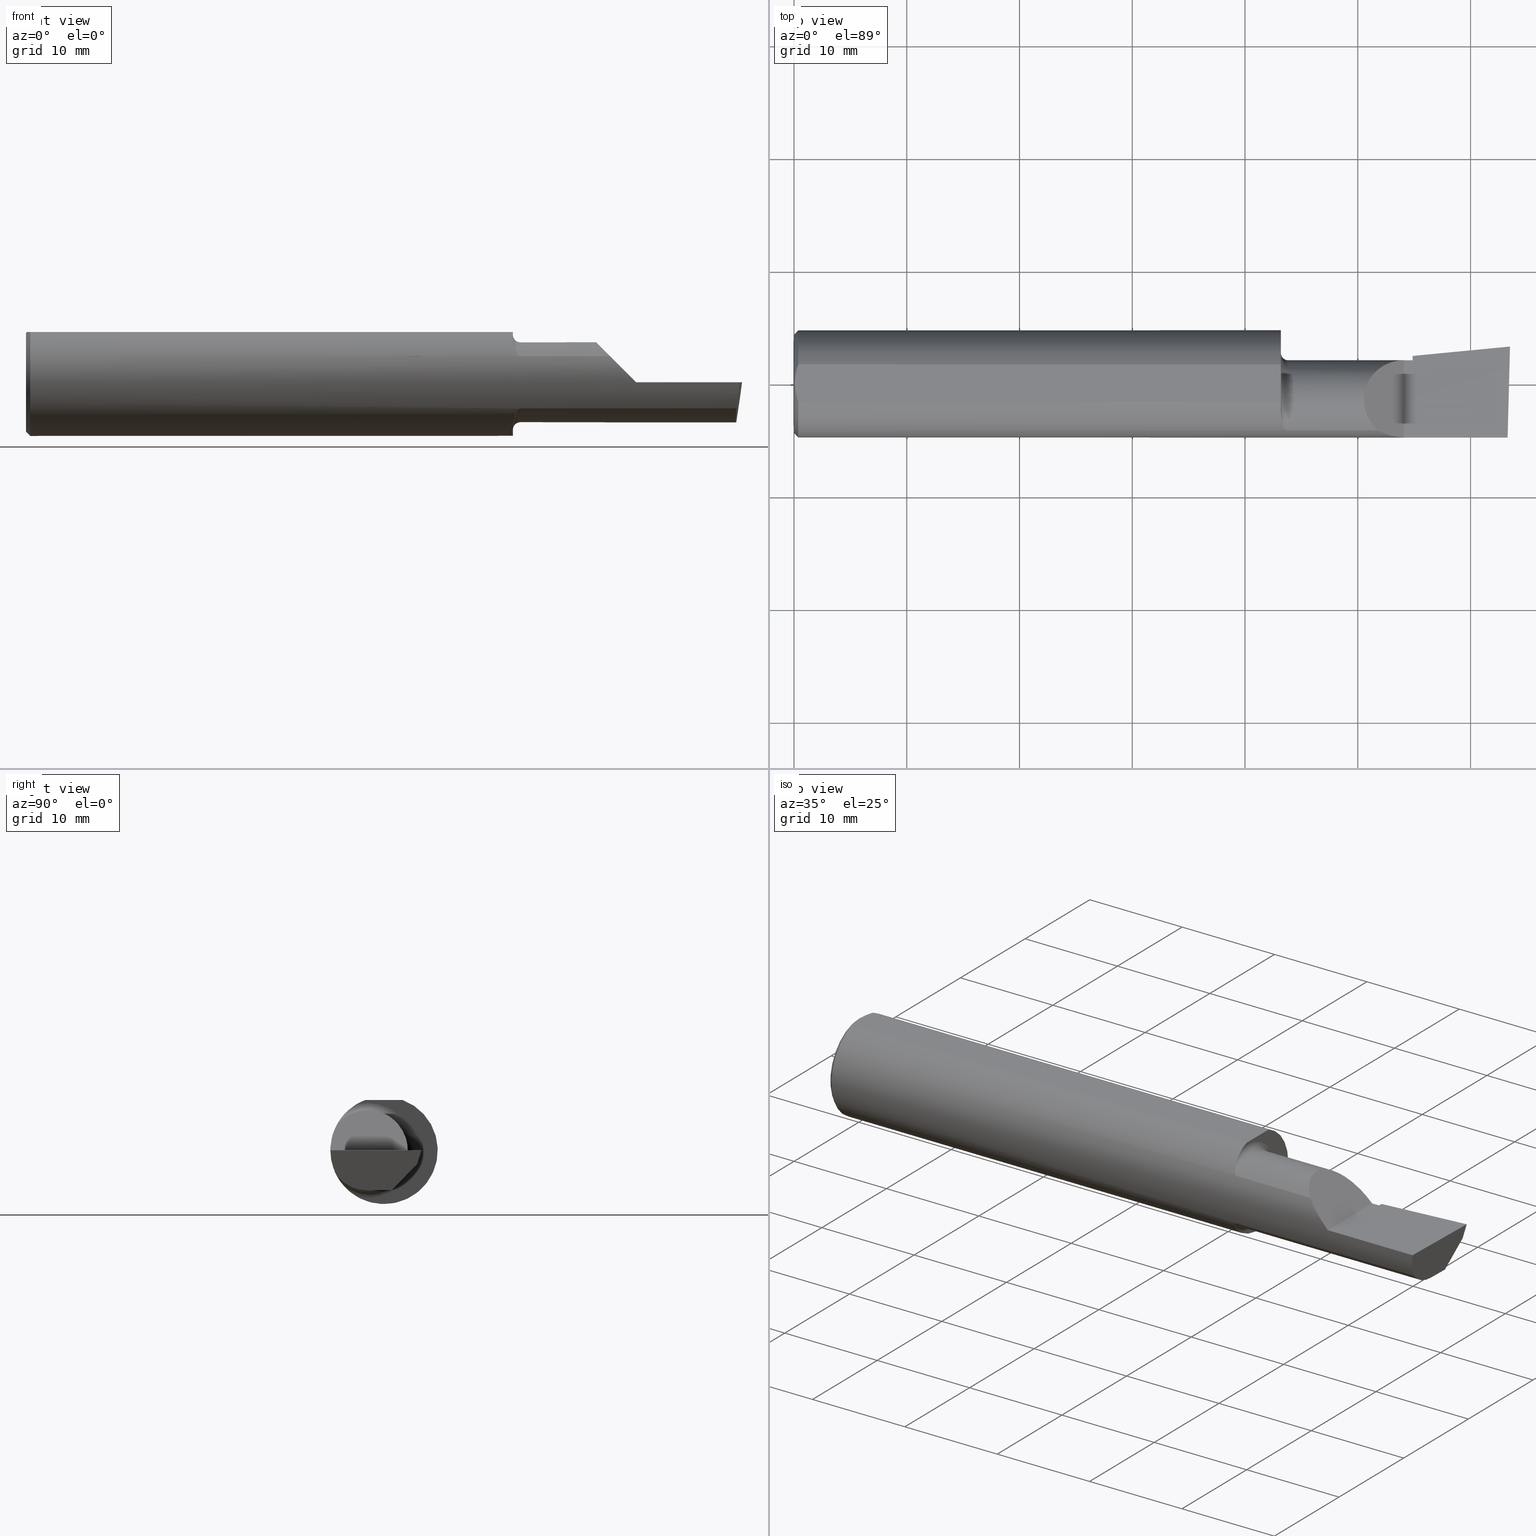
[diagram: canonical four-view strip — front | top / right | iso, engineering-drawing reading convention]
A machine part, canonical four-view strip (front | top / right | iso — engineering-drawing reading convention). The complete STEP part file that produces these views, byte-faithful:
ISO-10303-21;
HEADER;
FILE_DESCRIPTION (( 'STEP AP203' ),
    '1' );
FILE_NAME ('217513-B320750.STEP',
    '2024-04-26T19:31:10',
    ( '' ),
    ( '' ),
    'SwSTEP 2.0',
    'SolidWorks 2022',
    '' );
FILE_SCHEMA (( 'CONFIG_CONTROL_DESIGN' ));
ENDSEC;

DATA;
#1 = ORIENTED_EDGE ( 'NONE', *, *, #519, .F. ) ;
#2 = PLANE ( 'NONE',  #360 ) ;
#3 = CONICAL_SURFACE ( 'NONE', #206, 0.1873499999999999888, 0.7853981633974602694 ) ;
#4 = AXIS2_PLACEMENT_3D ( 'NONE', #473, #232, #470 ) ;
#5 = DIRECTION ( 'NONE',  ( -1.000000000000000000, -0.000000000000000000, -0.000000000000000000 ) ) ;
#6 = CC_DESIGN_APPROVAL ( #11, ( #216 ) ) ;
#7 = CARTESIAN_POINT ( 'NONE',  ( 0.000000000000000000, 0.000000000000000000, 0.000000000000000000 ) ) ;
#8 = EDGE_CURVE ( 'NONE', #627, #538, #231, .T. ) ;
#9 = EDGE_LOOP ( 'NONE', ( #516, #193, #292, #311, #623, #111 ) ) ;
#10 = CARTESIAN_POINT ( 'NONE',  ( 0.004093196532652216939, -0.02240707710020816909, 0.1753499999999999504 ) ) ;
#11 = APPROVAL ( #70, 'UNSPECIFIED' ) ;
#12 = CARTESIAN_POINT ( 'NONE',  ( 1.921229036482944075, -0.06260079402492431389, 0.2087709635170538203 ) ) ;
#13 = CARTESIAN_POINT ( 'NONE',  ( 2.160000000000000142, 0.01441505128072280949, -0.1202356058309981546 ) ) ;
#14 = VECTOR ( 'NONE', #295, 39.37007874015748143 ) ;
#15 = AXIS2_PLACEMENT_3D ( 'NONE', #201, #352, #294 ) ;
#16 = EDGE_CURVE ( 'NONE', #487, #195, #415, .T. ) ;
#17 = CARTESIAN_POINT ( 'NONE',  ( 2.129999999999999893, -0.2500000000000000555, 1.065442715258197396E-16 ) ) ;
#18 =( NAMED_UNIT ( * ) PLANE_ANGLE_UNIT ( ) SI_UNIT ( $, .RADIAN. ) );
#19 = CARTESIAN_POINT ( 'NONE',  ( 2.477873865042410806, -0.05739999999999999963, -0.1400500000000000633 ) ) ;
#20 = PERSON_AND_ORGANIZATION ( #509, #169 ) ;
#21 = LINE ( 'NONE', #313, #151 ) ;
#22 = VECTOR ( 'NONE', #102, 39.37007874015748143 ) ;
#23 = EDGE_CURVE ( 'NONE', #487, #331, #307, .T. ) ;
#24 = LINE ( 'NONE', #605, #34 ) ;
#25 = EDGE_LOOP ( 'NONE', ( #620, #464, #435, #543, #259 ) ) ;
#26 = CARTESIAN_POINT ( 'NONE',  ( 2.481080296960508580, -0.1635956445993030084, -0.09130436773856176469 ) ) ;
#27 =( BOUNDED_CURVE ( )  B_SPLINE_CURVE ( 3, ( #236, #46, #381, #570 ),
 .UNSPECIFIED., .F., .T. ) 
 B_SPLINE_CURVE_WITH_KNOTS ( ( 4, 4 ),
 ( 5.632580117768155148, 6.493234751459282528 ),
 .UNSPECIFIED. ) 
 CURVE ( )  GEOMETRIC_REPRESENTATION_ITEM ( )  RATIONAL_B_SPLINE_CURVE ( ( 1.000000000000000000, 0.9392195014330944058, 0.9392195014330944058, 1.000000000000000000 ) ) 
 REPRESENTATION_ITEM ( '' )  );
#28 = CC_DESIGN_PERSON_AND_ORGANIZATION_ASSIGNMENT ( #549, #462, ( #568 ) ) ;
#29 = ORIENTED_EDGE ( 'NONE', *, *, #103, .T. ) ;
#30 = CARTESIAN_POINT ( 'NONE',  ( 1.712204638458737049, -0.1550630761760521670, 0.1052254855377565551 ) ) ;
#31 = CARTESIAN_POINT ( 'NONE',  ( 0.5470260790800316464, -0.05740000000000000657, 2.701812985571356346E-16 ) ) ;
#32 = ORIENTED_EDGE ( 'NONE', *, *, #221, .F. ) ;
#33 = DIRECTION ( 'NONE',  ( -1.000000000000000000, -6.829619984160658046E-18, 0.000000000000000000 ) ) ;
#34 = VECTOR ( 'NONE', #367, 39.37007874015748143 ) ;
#35 = ORIENTED_EDGE ( 'NONE', *, *, #610, .F. ) ;
#36 = COORDINATED_UNIVERSAL_TIME_OFFSET ( 8, 0, .BEHIND. ) ;
#37 = PLANE ( 'NONE',  #278 ) ;
#38 = ORIENTED_EDGE ( 'NONE', *, *, #274, .T. ) ;
#39 = FACE_OUTER_BOUND ( 'NONE', #269, .T. ) ;
#40 = VERTEX_POINT ( 'NONE', #47 ) ;
#41 = LINE ( 'NONE', #134, #189 ) ;
#42 = EDGE_CURVE ( 'NONE', #275, #376, #399, .T. ) ;
#43 = VECTOR ( 'NONE', #286, 39.37007874015748143 ) ;
#44 = VERTEX_POINT ( 'NONE', #237 ) ;
#45 = PRODUCT_DEFINITION_FORMATION_WITH_SPECIFIED_SOURCE ( 'ANY', '', #600, .NOT_KNOWN. ) ;
#46 = CARTESIAN_POINT ( 'NONE',  ( 2.477925907309857401, -0.1365595166907235813, -0.1227499502647108609 ) ) ;
#47 = CARTESIAN_POINT ( 'NONE',  ( 2.160000000000000142, 0.09791172361284168624, 3.286754617377316716E-16 ) ) ;
#48 = ORIENTED_EDGE ( 'NONE', *, *, #71, .T. ) ;
#49 = CARTESIAN_POINT ( 'NONE',  ( 1.701903396790307221, -0.1248165254919059997, -0.1399798634953948184 ) ) ;
#50 = CARTESIAN_POINT ( 'NONE',  ( 0.003000000000000218638, 2.334609556160449697E-17, 0.1753499999999999781 ) ) ;
#51 = EDGE_CURVE ( 'NONE', #80, #325, #625, .T. ) ;
#52 = CARTESIAN_POINT ( 'NONE',  ( 2.129999999999999893, 0.08264999999999990410, 1.065442715258197396E-16 ) ) ;
#53 = DIRECTION ( 'NONE',  ( -6.829619984160658046E-18, 1.000000000000000000, 0.000000000000000000 ) ) ;
#54 = ORIENTED_EDGE ( 'NONE', *, *, #530, .F. ) ;
#55 = LOCAL_TIME ( 12, 31, 10.00000000000000000, #592 ) ;
#56 = CARTESIAN_POINT ( 'NONE',  ( 0.01125230581755086272, 0.05532998191409922023, 0.1753500000000000059 ) ) ;
#57 = ADVANCED_FACE ( 'NONE', ( #390 ), #3, .T. ) ;
#58 = CARTESIAN_POINT ( 'NONE',  ( 2.500000000000000000, -0.2500000000000000555, 6.829619984160658046E-17 ) ) ;
#59 = CARTESIAN_POINT ( 'NONE',  ( 1.700000000000000178, -0.1045082199249679489, -0.1557306416133595883 ) ) ;
#60 = DIRECTION ( 'NONE',  ( 0.000000000000000000, -1.438723400918613551E-16, -1.000000000000000000 ) ) ;
#61 = ORIENTED_EDGE ( 'NONE', *, *, #324, .T. ) ;
#62 = LINE ( 'NONE', #242, #99 ) ;
#63 = PLANE ( 'NONE',  #471 ) ;
#64 = DATE_AND_TIME ( #304, #141 ) ;
#65 = VECTOR ( 'NONE', #446, 39.37007874015748143 ) ;
#66 = CC_DESIGN_APPROVAL ( #619, ( #568 ) ) ;
#67 = SECURITY_CLASSIFICATION_LEVEL ( 'unclassified' ) ;
#68 = CARTESIAN_POINT ( 'NONE',  ( 1.716855994529494334, -0.1603175578889966812, 0.09696363432848482955 ) ) ;
#69 = VERTEX_POINT ( 'NONE', #534 ) ;
#70 = APPROVAL_STATUS ( 'not_yet_approved' ) ;
#71 = EDGE_CURVE ( 'NONE', #494, #538, #97, .T. ) ;
#72 = CARTESIAN_POINT ( 'NONE',  ( 0.000000000000000000, 0.000000000000000000, -0.1723499999999996424 ) ) ;
#73 = CARTESIAN_POINT ( 'NONE',  ( 0.01499999999999999424, 0.06597272163553663527, 0.1753499999999999781 ) ) ;
#74 = ORIENTED_EDGE ( 'NONE', *, *, #606, .T. ) ;
#75 = MECHANICAL_CONTEXT ( 'NONE', #533, 'mechanical' ) ;
#76 = CARTESIAN_POINT ( 'NONE',  ( 2.511419111345318811, 0.1163922996227946677, -0.04999999999999999584 ) ) ;
#77 = VECTOR ( 'NONE', #615, 39.37007874015748143 ) ;
#78 = VECTOR ( 'NONE', #5, 39.37007874015748143 ) ;
#79 = CARTESIAN_POINT ( 'NONE',  ( 2.481080296960508580, -0.1635956445993030084, -0.09130436773856176469 ) ) ;
#80 = VERTEX_POINT ( 'NONE', #73 ) ;
#81 = SHAPE_DEFINITION_REPRESENTATION ( #377, #375 ) ;
#82 = DIRECTION ( 'NONE',  ( 6.829619984160658816E-18, -1.000000000000000000, 0.000000000000000000 ) ) ;
#83 = DIRECTION ( 'NONE',  ( 6.829619984160658046E-18, -1.000000000000000000, 0.000000000000000000 ) ) ;
#84 = VERTEX_POINT ( 'NONE', #173 ) ;
#85 = FACE_OUTER_BOUND ( 'NONE', #413, .T. ) ;
#86 = ORIENTED_EDGE ( 'NONE', *, *, #476, .F. ) ;
#87 = LINE ( 'NONE', #227, #602 ) ;
#88 = AXIS2_PLACEMENT_3D ( 'NONE', #7, #485, #350 ) ;
#89 = AXIS2_PLACEMENT_3D ( 'NONE', #253, #559, #125 ) ;
#90 = ORIENTED_EDGE ( 'NONE', *, *, #274, .F. ) ;
#91 = CARTESIAN_POINT ( 'NONE',  ( 2.160000000000000142, -0.05739999999999999963, -0.1400500000000000633 ) ) ;
#92 = ORIENTED_EDGE ( 'NONE', *, *, #596, .F. ) ;
#93 = EDGE_CURVE ( 'NONE', #448, #420, #514, .T. ) ;
#94 = CARTESIAN_POINT ( 'NONE',  ( 2.487725449370724817, -0.1873500000000000443, -0.03213820089768506388 ) ) ;
#95 = CARTESIAN_POINT ( 'NONE',  ( 1.724999999999999867, -0.05740000000000000657, 0.000000000000000000 ) ) ;
#96 = ADVANCED_FACE ( 'NONE', ( #578 ), #147, .T. ) ;
#97 = LINE ( 'NONE', #520, #180 ) ;
#98 = AXIS2_PLACEMENT_3D ( 'NONE', #108, #496, #199 ) ;
#99 = VECTOR ( 'NONE', #584, 39.37007874015748143 ) ;
#100 = VERTEX_POINT ( 'NONE', #336 ) ;
#101 = CARTESIAN_POINT ( 'NONE',  ( 2.129999999999999893, -0.2500000000000000555, 1.065442715258197396E-16 ) ) ;
#102 = DIRECTION ( 'NONE',  ( 0.7071067811865390240, 0.000000000000000000, -0.7071067811865560104 ) ) ;
#103 = EDGE_CURVE ( 'NONE', #40, #474, #271, .T. ) ;
#104 = VERTEX_POINT ( 'NONE', #459 ) ;
#105 = DIRECTION ( 'NONE',  ( -1.000000000000000000, 0.000000000000000000, 1.033731667140896077E-16 ) ) ;
#106 = EDGE_LOOP ( 'NONE', ( #86, #368, #388, #228, #432, #74, #226, #35, #155, #256 ) ) ;
#107 = LINE ( 'NONE', #393, #234 ) ;
#108 = CARTESIAN_POINT ( 'NONE',  ( 2.160000000000000142, 0.09791172361283667636, 0.000000000000000000 ) ) ;
#109 = ORIENTED_EDGE ( 'NONE', *, *, #428, .T. ) ;
#110 = CARTESIAN_POINT ( 'NONE',  ( 2.500000000000000000, 0.2373500000000000332, 0.1753499999999999504 ) ) ;
#111 = ORIENTED_EDGE ( 'NONE', *, *, #288, .F. ) ;
#112 = CARTESIAN_POINT ( 'NONE',  ( 0.003000000000000169632, 0.01127363201155560934, 0.1753499999999999781 ) ) ;
#113 = EDGE_CURVE ( 'NONE', #40, #44, #24, .T. ) ;
#114 = APPROVAL_STATUS ( 'not_yet_approved' ) ;
#115 = DIRECTION ( 'NONE',  ( -0.9953961983671800740, -0.09584575252021031166, 0.000000000000000000 ) ) ;
#116 = EDGE_CURVE ( 'NONE', #284, #494, #291, .T. ) ;
#117 = PERSON_AND_ORGANIZATION_ROLE ( 'creator' ) ;
#118 = VECTOR ( 'NONE', #394, 39.37007874015748143 ) ;
#119 = CIRCLE ( 'NONE', #308, 0.1873499999999999888 ) ;
#120 = CARTESIAN_POINT ( 'NONE',  ( 2.509953961983673043, 0.1316084575252021716, -6.829619984160658046E-17 ) ) ;
#121 = DATE_TIME_ROLE ( 'classification_date' ) ;
#122 = DIRECTION ( 'NONE',  ( 0.000000000000000000, -1.000000000000000000, 0.000000000000000000 ) ) ;
#123 = CC_DESIGN_DATE_AND_TIME_ASSIGNMENT ( #408, #121, ( #216 ) ) ;
#124 = B_SPLINE_CURVE_WITH_KNOTS ( 'NONE', 3,
 ( #582, #440, #302, #10, #547, #541 ),
 .UNSPECIFIED., .F., .F.,
 ( 4, 2, 4 ),
 ( 0.001779942938356815062, 0.002629978419973711019, 0.003480013901590607410 ),
 .UNSPECIFIED. ) ;
#125 = DIRECTION ( 'NONE',  ( 1.000000000000000000, 0.000000000000000000, 0.000000000000000000 ) ) ;
#126 = DIRECTION ( 'NONE',  ( 0.000000000000000000, 1.000000000000000000, 0.000000000000000000 ) ) ;
#127 = DIRECTION ( 'NONE',  ( 0.000000000000000000, 0.000000000000000000, 1.000000000000000000 ) ) ;
#128 = ORIENTED_EDGE ( 'NONE', *, *, #8, .T. ) ;
#129 = DATE_AND_TIME ( #354, #55 ) ;
#130 = PLANE ( 'NONE',  #383 ) ;
#131 = APPLICATION_CONTEXT ( 'configuration controlled 3d designs of mechanical parts and assemblies' ) ;
#132 = ORIENTED_EDGE ( 'NONE', *, *, #142, .F. ) ;
#133 = CALENDAR_DATE ( 2024, 26, 4 ) ;
#134 = CARTESIAN_POINT ( 'NONE',  ( 2.160000000000000142, 0.06382066673065307782, -0.06931012851386068874 ) ) ;
#135 = ORIENTED_EDGE ( 'NONE', *, *, #356, .F. ) ;
#136 = APPROVAL_DATE_TIME ( #322, #11 ) ;
#137 = CARTESIAN_POINT ( 'NONE',  ( 0.000000000000000000, 2.202527268266512578E-17, 0.1723499999999996424 ) ) ;
#138 = ORIENTED_EDGE ( 'NONE', *, *, #626, .T. ) ;
#139 = CARTESIAN_POINT ( 'NONE',  ( 0.01499999999999999424, 0.000000000000000000, 0.000000000000000000 ) ) ;
#140 = VECTOR ( 'NONE', #369, 39.37007874015748143 ) ;
#141 = LOCAL_TIME ( 12, 31, 10.00000000000000000, #208 ) ;
#142 = EDGE_CURVE ( 'NONE', #331, #84, #300, .T. ) ;
#143 = ORIENTED_EDGE ( 'NONE', *, *, #387, .F. ) ;
#144 = CARTESIAN_POINT ( 'NONE',  ( 1.699999999999999956, -0.06597272163553659363, 0.1753499999999999781 ) ) ;
#145 = ORIENTED_EDGE ( 'NONE', *, *, #93, .T. ) ;
#146 = DIRECTION ( 'NONE',  ( -0.9922060308645608284, 0.02598182930461468559, 0.1218693434050591162 ) ) ;
#147 = PLANE ( 'NONE',  #339 ) ;
#148 = CARTESIAN_POINT ( 'NONE',  ( 1.699999999999999956, -0.09715400696864101571, -0.1601908905959925355 ) ) ;
#149 = DIRECTION ( 'NONE',  ( 0.000000000000000000, 1.000000000000000000, 8.537024980200821325E-17 ) ) ;
#150 = ADVANCED_FACE ( 'NONE', ( #499 ), #489, .F. ) ;
#151 = VECTOR ( 'NONE', #210, 39.37007874015748143 ) ;
#152 = ORIENTED_EDGE ( 'NONE', *, *, #314, .F. ) ;
#153 = CC_DESIGN_SECURITY_CLASSIFICATION ( #216, ( #45 ) ) ;
#154 = DIRECTION ( 'NONE',  ( 1.000000000000000000, 0.000000000000000000, 0.000000000000000000 ) ) ;
#155 = ORIENTED_EDGE ( 'NONE', *, *, #356, .T. ) ;
#156 = CARTESIAN_POINT ( 'NONE',  ( 0.003000000000000218638, 2.334609556160449697E-17, 0.1753499999999999781 ) ) ;
#157 = DIRECTION ( 'NONE',  ( 0.000000000000000000, 1.000000000000000000, -1.438723400918613551E-16 ) ) ;
#158 = ORIENTED_EDGE ( 'NONE', *, *, #387, .T. ) ;
#159 = VECTOR ( 'NONE', #247, 39.37007874015748143 ) ;
#160 = ADVANCED_FACE ( 'NONE', ( #493 ), #63, .F. ) ;
#161 = DIRECTION ( 'NONE',  ( 1.000000000000000000, 6.829619984160658046E-18, 0.000000000000000000 ) ) ;
#162 = CARTESIAN_POINT ( 'NONE',  ( 2.493766568580444432, 0.1168246249203733628, -0.04780233936830585728 ) ) ;
#163 = PERSON_AND_ORGANIZATION ( #509, #169 ) ;
#164 = CARTESIAN_POINT ( 'NONE',  ( 0.01499999999999997863, -0.06597272163553657975, 0.1753499999999999781 ) ) ;
#165 =( NAMED_UNIT ( * ) SI_UNIT ( $, .STERADIAN. ) SOLID_ANGLE_UNIT ( ) );
#166 = DIRECTION ( 'NONE',  ( -1.000000000000000000, -6.829619984160658046E-18, -0.000000000000000000 ) ) ;
#167 = EDGE_CURVE ( 'NONE', #100, #40, #537, .T. ) ;
#168 = PERSON_AND_ORGANIZATION ( #509, #169 ) ;
#169 = ORGANIZATION ( 'UNSPECIFIED', 'UNSPECIFIED', '' ) ;
#170 = CARTESIAN_POINT ( 'NONE',  ( 2.160000000000000142, -0.05739999999999999963, 0.000000000000000000 ) ) ;
#171 = PRODUCT_RELATED_PRODUCT_CATEGORY ( 'detail', '', ( #600 ) ) ;
#172 = CARTESIAN_POINT ( 'NONE',  ( 2.129999999999999893, 0.08264999999999990410, 1.065442715258197396E-16 ) ) ;
#173 = CARTESIAN_POINT ( 'NONE',  ( 0.01499999999999999424, 0.000000000000000000, -0.1873499999999999888 ) ) ;
#174 = ORIENTED_EDGE ( 'NONE', *, *, #167, .T. ) ;
#175 = DIRECTION ( 'NONE',  ( -1.000000000000000000, -6.829619984160658046E-18, -0.000000000000000000 ) ) ;
#176 =( BOUNDED_CURVE ( )  B_SPLINE_CURVE ( 3, ( #305, #567, #427, #183 ),
 .UNSPECIFIED., .F., .T. ) 
 B_SPLINE_CURVE_WITH_KNOTS ( ( 4, 4 ),
 ( 4.712388980384689674, 5.221437360734125122 ),
 .UNSPECIFIED. ) 
 CURVE ( )  GEOMETRIC_REPRESENTATION_ITEM ( )  RATIONAL_B_SPLINE_CURVE ( ( 1.000000000000000000, 0.9785221379938656705, 0.9785221379938656705, 1.000000000000000000 ) ) 
 REPRESENTATION_ITEM ( '' )  );
#177 = DIRECTION ( 'NONE',  ( -0.9953961983671800740, -0.09584575252021028391, -1.093478026937437971E-17 ) ) ;
#178 = ORIENTED_EDGE ( 'NONE', *, *, #23, .F. ) ;
#179 = EDGE_CURVE ( 'NONE', #331, #487, #613, .T. ) ;
#180 = VECTOR ( 'NONE', #149, 39.37007874015748143 ) ;
#181 = DIRECTION ( 'NONE',  ( -1.000000000000000000, -6.829619984160658046E-18, -0.000000000000000000 ) ) ;
#182 = ORIENTED_EDGE ( 'NONE', *, *, #186, .F. ) ;
#183 = CARTESIAN_POINT ( 'NONE',  ( 2.038695632261437130, -0.1635956445993029529, 0.09130436773856191734 ) ) ;
#184 = ORIENTED_EDGE ( 'NONE', *, *, #530, .T. ) ;
#185 = DIRECTION ( 'NONE',  ( -0.06894566448119619773, 0.7160281025913034503, -0.6946583704589934793 ) ) ;
#186 = EDGE_CURVE ( 'NONE', #80, #84, #233, .T. ) ;
#187 = VERTEX_POINT ( 'NONE', #13 ) ;
#188 = CARTESIAN_POINT ( 'NONE',  ( 1.724999999999999867, -0.1635956445993029251, -0.09130436773856190347 ) ) ;
#189 = VECTOR ( 'NONE', #379, 39.37007874015748143 ) ;
#190 = APPROVAL_PERSON_ORGANIZATION ( #168, #11, #214 ) ;
#191 = CARTESIAN_POINT ( 'NONE',  ( 2.491859106488688358, 0.02714641170210404381, -0.1400500000000000633 ) ) ;
#192 = FACE_OUTER_BOUND ( 'NONE', #614, .T. ) ;
#193 = ORIENTED_EDGE ( 'NONE', *, *, #364, .T. ) ;
#194 = DIRECTION ( 'NONE',  ( -1.000000000000000000, -0.000000000000000000, -0.000000000000000000 ) ) ;
#195 = VERTEX_POINT ( 'NONE', #50 ) ;
#196 = CARTESIAN_POINT ( 'NONE',  ( 3.377502344341257155E-32, -0.1873499999999999610, 3.267291166268304703E-16 ) ) ;
#197 = FACE_OUTER_BOUND ( 'NONE', #9, .T. ) ;
#198 = AXIS2_PLACEMENT_3D ( 'NONE', #402, #250, #442 ) ;
#199 = DIRECTION ( 'NONE',  ( 6.829619984160658046E-18, -1.000000000000000000, 0.000000000000000000 ) ) ;
#200 = EDGE_LOOP ( 'NONE', ( #135, #571, #372 ) ) ;
#201 = CARTESIAN_POINT ( 'NONE',  ( 2.160000000000000142, -0.05739999999999999963, 0.000000000000000000 ) ) ;
#202 = LINE ( 'NONE', #162, #287 ) ;
#203 = ADVANCED_FACE ( 'NONE', ( #445 ), #540, .F. ) ;
#204 = DIRECTION ( 'NONE',  ( -0.7071067811865511255, 0.000000000000000000, 0.7071067811865437980 ) ) ;
#205 = DIRECTION ( 'NONE',  ( 0.1053106618240634978, 0.6976485211320199165, 0.7086580314005359593 ) ) ;
#206 = AXIS2_PLACEMENT_3D ( 'NONE', #392, #268, #580 ) ;
#207 = CIRCLE ( 'NONE', #581, 0.1650500000000000300 ) ;
#208 = COORDINATED_UNIVERSAL_TIME_OFFSET ( 8, 0, .BEHIND. ) ;
#209 = EDGE_CURVE ( 'NONE', #325, #448, #542, .T. ) ;
#210 = DIRECTION ( 'NONE',  ( 0.1240019227988267692, 0.3022330132596589558, 0.9451342385281472636 ) ) ;
#211 = B_SPLINE_CURVE_WITH_KNOTS ( 'NONE', 3,
 ( #591, #353, #548, #409, #363, #599, #609, #30, #310, #68, #355, #315, #366, #258 ),
 .UNSPECIFIED., .F., .F.,
 ( 4, 2, 2, 2, 2, 2, 4 ),
 ( 0.0002471551878304205298, 0.0008987327522055599521, 0.001550310316580699212, 0.002201887880955839122, 0.002527676663143408210, 0.002690571054237193404, 0.002853465445330977731 ),
 .UNSPECIFIED. ) ;
#212 = FACE_OUTER_BOUND ( 'NONE', #477, .T. ) ;
#213 = ADVANCED_FACE ( 'NONE', ( #197 ), #583, .F. ) ;
#214 = APPROVAL_ROLE ( '' ) ;
#215 = AXIS2_PLACEMENT_3D ( 'NONE', #58, #449, #105 ) ;
#216 = SECURITY_CLASSIFICATION ( '', '', #67 ) ;
#217 = CARTESIAN_POINT ( 'NONE',  ( 2.491672876940991710, -0.1873499999999999888, 6.915950918908297591E-17 ) ) ;
#218 = CARTESIAN_POINT ( 'NONE',  ( 2.484117089522337452, -0.1792580844883771007, -0.06324101202936138755 ) ) ;
#219 = EDGE_LOOP ( 'NONE', ( #527, #298 ) ) ;
#220 = LINE ( 'NONE', #17, #441 ) ;
#221 = EDGE_CURVE ( 'NONE', #187, #538, #240, .T. ) ;
#222 = EDGE_LOOP ( 'NONE', ( #469, #511, #321, #48 ) ) ;
#223 = ORIENTED_EDGE ( 'NONE', *, *, #324, .F. ) ;
#224 = AXIS2_PLACEMENT_3D ( 'NONE', #453, #560, #261 ) ;
#225 = CARTESIAN_POINT ( 'NONE',  ( 2.511419111345318811, 0.1163922996227946677, -0.04999999999999999584 ) ) ;
#226 = ORIENTED_EDGE ( 'NONE', *, *, #293, .T. ) ;
#227 = CARTESIAN_POINT ( 'NONE',  ( 1.942499999999999893, -0.1635956445993030084, -0.09130436773856176469 ) ) ;
#228 = ORIENTED_EDGE ( 'NONE', *, *, #596, .T. ) ;
#229 = CARTESIAN_POINT ( 'NONE',  ( 1.724999999999999867, -0.1635956445993029251, -0.09130436773856190347 ) ) ;
#230 = CC_DESIGN_PERSON_AND_ORGANIZATION_ASSIGNMENT ( #552, #452, ( #600 ) ) ;
#231 = LINE ( 'NONE', #191, #503 ) ;
#232 = DIRECTION ( 'NONE',  ( -1.000000000000000000, -0.000000000000000000, -0.000000000000000000 ) ) ;
#233 = CIRCLE ( 'NONE', #198, 0.1873499999999999888 ) ;
#234 = VECTOR ( 'NONE', #161, 39.37007874015748143 ) ;
#235 = EDGE_LOOP ( 'NONE', ( #361, #484 ) ) ;
#236 = CARTESIAN_POINT ( 'NONE',  ( 2.481080296960508580, -0.1635956445993030084, -0.09130436773856176469 ) ) ;
#237 = CARTESIAN_POINT ( 'NONE',  ( 2.160000000000000142, 0.08255448787293394319, -0.04999999999999999584 ) ) ;
#238 = ADVANCED_FACE ( 'NONE', ( #248 ), #347, .T. ) ;
#239 = CARTESIAN_POINT ( 'NONE',  ( 1.975085956200449022, 0.08265000000000000124, 0.1549140437995494002 ) ) ;
#240 = LINE ( 'NONE', #593, #118 ) ;
#241 = DIMENSIONAL_EXPONENTS ( 1.000000000000000000, 0.000000000000000000, 0.000000000000000000, 0.000000000000000000, 0.000000000000000000, 0.000000000000000000, 0.000000000000000000 ) ;
#242 = CARTESIAN_POINT ( 'NONE',  ( 1.942499999999999893, -0.1635956445993030084, 0.09130436773856176469 ) ) ;
#243 = CARTESIAN_POINT ( 'NONE',  ( 1.699999999999999956, 0.2373500000000000332, 0.1753499999999999504 ) ) ;
#244 = TOROIDAL_SURFACE ( 'NONE', #328, 0.1650500000000000023, 0.02499999999999992853 ) ;
#245 = ORIENTED_EDGE ( 'NONE', *, *, #544, .F. ) ;
#246 = DIRECTION ( 'NONE',  ( -1.000000000000000000, -6.829619984160658046E-18, -0.000000000000000000 ) ) ;
#247 = DIRECTION ( 'NONE',  ( 6.829619984160658046E-18, -1.000000000000000000, 1.438723400918613551E-16 ) ) ;
#248 = FACE_OUTER_BOUND ( 'NONE', #337, .T. ) ;
#249 = ORIENTED_EDGE ( 'NONE', *, *, #626, .F. ) ;
#250 = DIRECTION ( 'NONE',  ( -1.000000000000000000, -0.000000000000000000, -0.000000000000000000 ) ) ;
#251 = VECTOR ( 'NONE', #115, 39.37007874015748854 ) ;
#252 = CIRCLE ( 'NONE', #15, 0.1400500000000000356 ) ;
#253 = CARTESIAN_POINT ( 'NONE',  ( 0.000000000000000000, 0.000000000000000000, 0.000000000000000000 ) ) ;
#254 = CYLINDRICAL_SURFACE ( 'NONE', #492, 0.1400500000000000078 ) ;
#255 = APPROVAL ( #114, 'UNSPECIFIED' ) ;
#256 = ORIENTED_EDGE ( 'NONE', *, *, #116, .F. ) ;
#257 = PERSON_AND_ORGANIZATION ( #509, #169 ) ;
#258 = CARTESIAN_POINT ( 'NONE',  ( 1.724999999999999867, -0.1635956445993027586, 0.09130436773856215327 ) ) ;
#259 = ORIENTED_EDGE ( 'NONE', *, *, #573, .T. ) ;
#260 = COORDINATED_UNIVERSAL_TIME_OFFSET ( 8, 0, .BEHIND. ) ;
#261 = DIRECTION ( 'NONE',  ( 0.000000000000000000, -1.000000000000000000, 0.000000000000000000 ) ) ;
#262 = B_SPLINE_CURVE_WITH_KNOTS ( 'NONE', 3,
 ( #229, #332, #531, #283, #478, #430, #624, #532, #579, #495, #49, #488, #59, #148 ),
 .UNSPECIFIED., .F., .F.,
 ( 4, 2, 2, 2, 2, 2, 4 ),
 ( 1.968340875534775581E-07, 0.0001667114270246284366, 0.0003332260199617034032, 0.0006662552058358533905, 0.001332313577584147510, 0.001998371949332441305, 0.002664430321080735534 ),
 .UNSPECIFIED. ) ;
#263 = DIRECTION ( 'NONE',  ( -1.000000000000000000, -6.829619984160658046E-18, 0.000000000000000000 ) ) ;
#264 = APPLICATION_PROTOCOL_DEFINITION ( 'international standard', 'config_control_design', 1994, #131 ) ;
#265 = AXIS2_PLACEMENT_3D ( 'NONE', #95, #181, #323 ) ;
#266 = LINE ( 'NONE', #407, #140 ) ;
#267 = EDGE_CURVE ( 'NONE', #627, #348, #202, .T. ) ;
#268 = DIRECTION ( 'NONE',  ( 1.000000000000000000, 0.000000000000000000, 0.000000000000000000 ) ) ;
#269 = EDGE_LOOP ( 'NONE', ( #576, #490, #279, #597, #521, #574 ) ) ;
#270 = DIRECTION ( 'NONE',  ( 0.02617694830779364323, 0.9996573249755593693, -2.665804247635780349E-18 ) ) ;
#271 = LINE ( 'NONE', #31, #554 ) ;
#272 = ORIENTED_EDGE ( 'NONE', *, *, #51, .F. ) ;
#273 = CARTESIAN_POINT ( 'NONE',  ( 2.160000000000000142, 0.09791172361283667636, 0.000000000000000000 ) ) ;
#274 = EDGE_CURVE ( 'NONE', #400, #316, #211, .T. ) ;
#275 = VERTEX_POINT ( 'NONE', #26 ) ;
#276 = AXIS2_PLACEMENT_3D ( 'NONE', #110, #60, #157 ) ;
#277 = PLANE ( 'NONE',  #351 ) ;
#278 = AXIS2_PLACEMENT_3D ( 'NONE', #575, #146, #326 ) ;
#279 = ORIENTED_EDGE ( 'NONE', *, *, #267, .T. ) ;
#280 = CC_DESIGN_PERSON_AND_ORGANIZATION_ASSIGNMENT ( #257, #454, ( #216 ) ) ;
#281 = PLANE ( 'NONE',  #385 ) ;
#282 = ORIENTED_EDGE ( 'NONE', *, *, #209, .T. ) ;
#283 = CARTESIAN_POINT ( 'NONE',  ( 1.717975941902153192, -0.1612443294219078060, -0.09540922431498248535 ) ) ;
#284 = VERTEX_POINT ( 'NONE', #19 ) ;
#285 = FACE_OUTER_BOUND ( 'NONE', #529, .T. ) ;
#286 = DIRECTION ( 'NONE',  ( -1.000000000000000000, -0.000000000000000000, -0.000000000000000000 ) ) ;
#287 = VECTOR ( 'NONE', #205, 39.37007874015748854 ) ;
#288 = EDGE_CURVE ( 'NONE', #104, #382, #220, .T. ) ;
#289 = CARTESIAN_POINT ( 'NONE',  ( 1.699999999999999956, -0.05740000000000000657, 0.000000000000000000 ) ) ;
#290 = ORIENTED_EDGE ( 'NONE', *, *, #335, .F. ) ;
#291 = LINE ( 'NONE', #303, #14 ) ;
#292 = ORIENTED_EDGE ( 'NONE', *, *, #103, .F. ) ;
#293 = EDGE_CURVE ( 'NONE', #100, #380, #371, .T. ) ;
#294 = DIRECTION ( 'NONE',  ( 0.000000000000000000, -1.000000000000000000, 0.000000000000000000 ) ) ;
#295 = DIRECTION ( 'NONE',  ( -1.000000000000000000, 5.691349986800549142E-18, -0.000000000000000000 ) ) ;
#296 = AXIS2_PLACEMENT_3D ( 'NONE', #431, #194, #127 ) ;
#297 = AXIS2_PLACEMENT_3D ( 'NONE', #498, #154, #539 ) ;
#298 = ORIENTED_EDGE ( 'NONE', *, *, #422, .T. ) ;
#299 = LENGTH_MEASURE_WITH_UNIT ( LENGTH_MEASURE( 0.02539999999999999897 ), #349 );
#300 = LINE ( 'NONE', #405, #22 ) ;
#301 = ORIENTED_EDGE ( 'NONE', *, *, #209, .F. ) ;
#302 = CARTESIAN_POINT ( 'NONE',  ( 0.008227791779583789808, -0.04447712204611815878, 0.1753499999999999781 ) ) ;
#303 = CARTESIAN_POINT ( 'NONE',  ( 2.500000000000000000, -0.05739999999999999963, -0.1400500000000000633 ) ) ;
#304 = CALENDAR_DATE ( 2024, 26, 4 ) ;
#305 = CARTESIAN_POINT ( 'NONE',  ( 2.129999999999999893, -0.1873499999999999888, 1.065442715258197396E-16 ) ) ;
#306 = ADVANCED_FACE ( 'NONE', ( #212 ), #244, .F. ) ;
#307 = CIRCLE ( 'NONE', #296, 0.1723499999999996424 ) ;
#308 = AXIS2_PLACEMENT_3D ( 'NONE', #618, #612, #621 ) ;
#309 = PERSON_AND_ORGANIZATION_ROLE ( 'design_supplier' ) ;
#310 = CARTESIAN_POINT ( 'NONE',  ( 1.713764108097882932, -0.1573043405450769705, 0.1018329020719639239 ) ) ;
#311 = ORIENTED_EDGE ( 'NONE', *, *, #167, .F. ) ;
#312 = APPROVAL_ROLE ( '' ) ;
#313 = CARTESIAN_POINT ( 'NONE',  ( 2.500188977433779769, 0.1311105994646662165, 0.001440373173041438384 ) ) ;
#314 = EDGE_CURVE ( 'NONE', #348, #474, #21, .T. ) ;
#315 = CARTESIAN_POINT ( 'NONE',  ( 1.720903862568968989, -0.1628809688430619684, 0.09258733509388511473 ) ) ;
#316 = VERTEX_POINT ( 'NONE', #508 ) ;
#317 = DATE_AND_TIME ( #608, #319 ) ;
#318 = VECTOR ( 'NONE', #434, 39.37007874015748143 ) ;
#319 = LOCAL_TIME ( 12, 31, 10.00000000000000000, #362 ) ;
#320 = DIRECTION ( 'NONE',  ( -0.09165774897393341725, 0.9519021185660614393, -0.2923717047227303301 ) ) ;
#321 = ORIENTED_EDGE ( 'NONE', *, *, #116, .T. ) ;
#322 = DATE_AND_TIME ( #133, #515 ) ;
#323 = DIRECTION ( 'NONE',  ( 0.000000000000000000, -1.000000000000000000, 0.000000000000000000 ) ) ;
#324 = EDGE_CURVE ( 'NONE', #348, #44, #502, .T. ) ;
#325 = VERTEX_POINT ( 'NONE', #603 ) ;
#326 = DIRECTION ( 'NONE',  ( 0.1219104985251942275, 0.000000000000000000, 0.9925410975618785825 ) ) ;
#327 = ORIENTED_EDGE ( 'NONE', *, *, #616, .T. ) ;
#328 = AXIS2_PLACEMENT_3D ( 'NONE', #463, #175, #419 ) ;
#329 = CARTESIAN_POINT ( 'NONE',  ( 2.477889026591898247, -0.05682100378451882677, -0.1400500000000000633 ) ) ;
#330 =( GEOMETRIC_REPRESENTATION_CONTEXT ( 3 ) GLOBAL_UNCERTAINTY_ASSIGNED_CONTEXT ( ( #466 ) ) GLOBAL_UNIT_ASSIGNED_CONTEXT ( ( #391, #18, #165 ) ) REPRESENTATION_CONTEXT ( 'NONE', 'WORKASPACE' ) );
#331 = VERTEX_POINT ( 'NONE', #72 ) ;
#332 = CARTESIAN_POINT ( 'NONE',  ( 1.722779935319434408, -0.1635956445993029529, -0.09130436773856197286 ) ) ;
#333 = ORIENTED_EDGE ( 'NONE', *, *, #267, .F. ) ;
#334 = CARTESIAN_POINT ( 'NONE',  ( 2.499999999999978684, 0.1306500000000237749, 8.405341369881224661E-14 ) ) ;
#335 = EDGE_CURVE ( 'NONE', #448, #400, #601, .T. ) ;
#336 = CARTESIAN_POINT ( 'NONE',  ( 2.160000000000000142, 0.08265000000000004288, 3.267291166268305196E-16 ) ) ;
#337 = EDGE_LOOP ( 'NONE', ( #461, #282, #365, #138 ) ) ;
#338 = CARTESIAN_POINT ( 'NONE',  ( 2.160000000000000142, -0.004807985797372735411, -0.1400500000000000633 ) ) ;
#339 = AXIS2_PLACEMENT_3D ( 'NONE', #467, #263, #83 ) ;
#340 = CARTESIAN_POINT ( 'NONE',  ( 1.699999999999999956, 0.1076500000000000096, 0.000000000000000000 ) ) ;
#341 = APPROVAL_PERSON_ORGANIZATION ( #163, #619, #312 ) ;
#342 = EDGE_LOOP ( 'NONE', ( #174, #524, #158, #345 ) ) ;
#343 = FACE_OUTER_BOUND ( 'NONE', #235, .T. ) ;
#344 = DIRECTION ( 'NONE',  ( 0.000000000000000000, -1.000000000000000000, -8.537024980200821325E-17 ) ) ;
#345 = ORIENTED_EDGE ( 'NONE', *, *, #293, .F. ) ;
#346 = FACE_OUTER_BOUND ( 'NONE', #424, .T. ) ;
#347 = PLANE ( 'NONE',  #359 ) ;
#348 = VERTEX_POINT ( 'NONE', #417 ) ;
#349 =( LENGTH_UNIT ( ) NAMED_UNIT ( * ) SI_UNIT ( $, .METRE. ) );
#350 = DIRECTION ( 'NONE',  ( 0.000000000000000000, 0.000000000000000000, 1.000000000000000000 ) ) ;
#351 = AXIS2_PLACEMENT_3D ( 'NONE', #225, #185, #389 ) ;
#352 = DIRECTION ( 'NONE',  ( 1.000000000000000000, 6.829619984160658046E-18, 0.000000000000000000 ) ) ;
#353 = CARTESIAN_POINT ( 'NONE',  ( 1.699999999999999734, -0.1045012500212951778, 0.1557348687830036327 ) ) ;
#354 = CALENDAR_DATE ( 2024, 26, 4 ) ;
#355 = CARTESIAN_POINT ( 'NONE',  ( 1.718001859868116821, -0.1612625562479369223, 0.09537826053888202871 ) ) ;
#356 = EDGE_CURVE ( 'NONE', #187, #494, #403, .T. ) ;
#357 = APPROVAL_STATUS ( 'not_yet_approved' ) ;
#358 = FACE_OUTER_BOUND ( 'NONE', #106, .T. ) ;
#359 = AXIS2_PLACEMENT_3D ( 'NONE', #340, #438, #53 ) ;
#360 = AXIS2_PLACEMENT_3D ( 'NONE', #101, #444, #204 ) ;
#361 = ORIENTED_EDGE ( 'NONE', *, *, #179, .T. ) ;
#362 = COORDINATED_UNIVERSAL_TIME_OFFSET ( 8, 0, .BEHIND. ) ;
#363 = CARTESIAN_POINT ( 'NONE',  ( 1.703025912205683445, -0.1310442973014112333, 0.1341609063345044761 ) ) ;
#364 = EDGE_CURVE ( 'NONE', #376, #474, #457, .T. ) ;
#365 = ORIENTED_EDGE ( 'NONE', *, *, #335, .T. ) ;
#366 = CARTESIAN_POINT ( 'NONE',  ( 1.722800914500664637, -0.1635956445997546194, 0.09130436773775278680 ) ) ;
#367 = DIRECTION ( 'NONE',  ( 2.005228508682077051E-18, -0.2936076258024061247, -0.9559260233253795702 ) ) ;
#368 = ORIENTED_EDGE ( 'NONE', *, *, #519, .T. ) ;
#369 = DIRECTION ( 'NONE',  ( 4.755568962650853567E-18, -0.6963153109074925462, -0.7177360153954948085 ) ) ;
#370 = DIRECTION ( 'NONE',  ( 1.000000000000000000, 0.000000000000000000, 0.000000000000000000 ) ) ;
#371 = CIRCLE ( 'NONE', #535, 0.1400500000000000356 ) ;
#372 = ORIENTED_EDGE ( 'NONE', *, *, #71, .F. ) ;
#373 = AXIS2_PLACEMENT_3D ( 'NONE', #528, #374, #522 ) ;
#374 = DIRECTION ( 'NONE',  ( -1.000000000000000000, -0.000000000000000000, -0.000000000000000000 ) ) ;
#375 = ADVANCED_BREP_SHAPE_REPRESENTATION ( '217513-B320750', ( #450, #89 ), #330 ) ;
#376 = VERTEX_POINT ( 'NONE', #217 ) ;
#377 = PRODUCT_DEFINITION_SHAPE ( 'NONE', 'NONE',  #568 ) ;
#378 =( BOUNDED_CURVE ( )  B_SPLINE_CURVE ( 3, ( #536, #12, #239, #52 ),
 .UNSPECIFIED., .F., .T. ) 
 B_SPLINE_CURVE_WITH_KNOTS ( ( 4, 4 ),
 ( 5.422530673488458852, 7.853981633974482790 ),
 .UNSPECIFIED. ) 
 CURVE ( )  GEOMETRIC_REPRESENTATION_ITEM ( )  RATIONAL_B_SPLINE_CURVE ( ( 1.000000000000000000, 0.5651045289226863666, 0.5651045289226863666, 1.000000000000000000 ) ) 
 REPRESENTATION_ITEM ( '' )  );
#379 = DIRECTION ( 'NONE',  ( 4.755568962650853567E-18, -0.6963153109074925462, -0.7177360153954948085 ) ) ;
#380 = VERTEX_POINT ( 'NONE', #414 ) ;
#381 = CARTESIAN_POINT ( 'NONE',  ( 2.476787929832031221, -0.09887019258091186980, -0.1400500000000000356 ) ) ;
#382 = VERTEX_POINT ( 'NONE', #172 ) ;
#383 = AXIS2_PLACEMENT_3D ( 'NONE', #120, #320, #518 ) ;
#384 = DIRECTION ( 'NONE',  ( 6.829619984160658046E-18, -1.000000000000000000, 0.000000000000000000 ) ) ;
#385 = AXIS2_PLACEMENT_3D ( 'NONE', #273, #33, #384 ) ;
#386 = CARTESIAN_POINT ( 'NONE',  ( 0.01499999999999999424, 2.294375778202566330E-17, 0.1873499999999999888 ) ) ;
#387 = EDGE_CURVE ( 'NONE', #44, #380, #266, .T. ) ;
#388 = ORIENTED_EDGE ( 'NONE', *, *, #428, .F. ) ;
#389 = DIRECTION ( 'NONE',  ( 0.000000000000000000, 0.6963153109074925462, 0.7177360153954946975 ) ) ;
#390 = FACE_OUTER_BOUND ( 'NONE', #25, .T. ) ;
#391 =( CONVERSION_BASED_UNIT ( 'INCH', #299 ) LENGTH_UNIT ( ) NAMED_UNIT ( #241 ) );
#392 = CARTESIAN_POINT ( 'NONE',  ( 0.01499999999999999424, 0.000000000000000000, 0.000000000000000000 ) ) ;
#393 = CARTESIAN_POINT ( 'NONE',  ( -9.564882787816664242E-19, 0.08264999999999998737, 3.267291166268304703E-16 ) ) ;
#394 = DIRECTION ( 'NONE',  ( 4.755568962650853567E-18, -0.6963153109074925462, -0.7177360153954948085 ) ) ;
#395 = ADVANCED_FACE ( 'NONE', ( #358 ), #254, .T. ) ;
#396 = EDGE_LOOP ( 'NONE', ( #152, #61, #418, #29 ) ) ;
#397 = CARTESIAN_POINT ( 'NONE',  ( 2.500000000000000000, -0.05739999999999999963, -0.1400500000000000633 ) ) ;
#398 = CC_DESIGN_PERSON_AND_ORGANIZATION_ASSIGNMENT ( #20, #309, ( #45 ) ) ;
#399 =( BOUNDED_CURVE ( )  B_SPLINE_CURVE ( 3, ( #79, #218, #94, #510 ),
 .UNSPECIFIED., .F., .F. ) 
 B_SPLINE_CURVE_WITH_KNOTS ( ( 4, 4 ),
 ( 0.8516985021657650368, 1.360746882515200484 ),
 .UNSPECIFIED. ) 
 CURVE ( )  GEOMETRIC_REPRESENTATION_ITEM ( )  RATIONAL_B_SPLINE_CURVE ( ( 1.000000000000000000, 0.9785221379938656705, 0.9785221379938656705, 1.000000000000000000 ) ) 
 REPRESENTATION_ITEM ( '' )  );
#400 = VERTEX_POINT ( 'NONE', #563 ) ;
#401 = DIRECTION ( 'NONE',  ( 0.000000000000000000, -1.000000000000000000, 0.000000000000000000 ) ) ;
#402 = CARTESIAN_POINT ( 'NONE',  ( 0.01499999999999999424, 0.000000000000000000, 0.000000000000000000 ) ) ;
#403 = CIRCLE ( 'NONE', #224, 0.1400500000000000356 ) ;
#404 = ADVANCED_FACE ( 'NONE', ( #465 ), #130, .T. ) ;
#405 = CARTESIAN_POINT ( 'NONE',  ( 0.01499999999999999424, 0.000000000000000000, -0.1873499999999999888 ) ) ;
#406 = APPROVAL_DATE_TIME ( #64, #255 ) ;
#407 = CARTESIAN_POINT ( 'NONE',  ( 2.160000000000000142, 0.06382066673065307782, -0.06931012851386068874 ) ) ;
#408 = DATE_AND_TIME ( #557, #460 ) ;
#409 = CARTESIAN_POINT ( 'NONE',  ( 1.701891754936544654, -0.1247344934163565205, 0.1400506178720503370 ) ) ;
#410 = EDGE_CURVE ( 'NONE', #104, #443, #176, .T. ) ;
#411 = VECTOR ( 'NONE', #270, 39.37007874015748854 ) ;
#412 = APPROVAL_PERSON_ORGANIZATION ( #517, #255, #507 ) ;
#413 = EDGE_LOOP ( 'NONE', ( #1, #497, #416, #617, #92, #90, #290, #145, #569, #182, #506, #588, #54 ) ) ;
#414 = CARTESIAN_POINT ( 'NONE',  ( 2.160000000000000142, 0.06495571228477960146, -0.06814016562413273415 ) ) ;
#415 = LINE ( 'NONE', #386, #318 ) ;
#416 = ORIENTED_EDGE ( 'NONE', *, *, #562, .T. ) ;
#417 = CARTESIAN_POINT ( 'NONE',  ( 2.493439983562941720, 0.1146611065212078395, -0.04999999999999999584 ) ) ;
#418 = ORIENTED_EDGE ( 'NONE', *, *, #113, .F. ) ;
#419 = DIRECTION ( 'NONE',  ( 6.829619984160658816E-18, -1.000000000000000000, 0.000000000000000000 ) ) ;
#420 = VERTEX_POINT ( 'NONE', #164 ) ;
#421 = CC_DESIGN_APPROVAL ( #255, ( #45 ) ) ;
#422 = EDGE_CURVE ( 'NONE', #380, #187, #41, .T. ) ;
#423 = CYLINDRICAL_SURFACE ( 'NONE', #4, 0.1873499999999999888 ) ;
#424 = EDGE_LOOP ( 'NONE', ( #245, #607, #472 ) ) ;
#425 = LINE ( 'NONE', #329, #77 ) ;
#426 = ORIENTED_EDGE ( 'NONE', *, *, #93, .F. ) ;
#427 = CARTESIAN_POINT ( 'NONE',  ( 2.066758987970638284, -0.1792580844883770730, 0.06324101202936138755 ) ) ;
#428 = EDGE_CURVE ( 'NONE', #316, #439, #545, .T. ) ;
#429 = ORIENTED_EDGE ( 'NONE', *, *, #573, .F. ) ;
#430 = CARTESIAN_POINT ( 'NONE',  ( 1.713743174082348997, -0.1572750258711007598, -0.1018777902325216644 ) ) ;
#431 = CARTESIAN_POINT ( 'NONE',  ( 0.000000000000000000, 0.000000000000000000, 0.000000000000000000 ) ) ;
#432 = ORIENTED_EDGE ( 'NONE', *, *, #544, .T. ) ;
#433 = CARTESIAN_POINT ( 'NONE',  ( 0.004115035183746292881, 0.02255629470626744487, 0.1753499999999999781 ) ) ;
#434 = DIRECTION ( 'NONE',  ( 0.7071067811865390240, 8.659560562355036396E-17, 0.7071067811865560104 ) ) ;
#435 = ORIENTED_EDGE ( 'NONE', *, *, #142, .T. ) ;
#436 = ADVANCED_FACE ( 'NONE', ( #285 ), #277, .T. ) ;
#437 = LINE ( 'NONE', #196, #78 ) ;
#438 = DIRECTION ( 'NONE',  ( 1.000000000000000000, 6.829619984160658046E-18, 0.000000000000000000 ) ) ;
#439 = VERTEX_POINT ( 'NONE', #188 ) ;
#440 = CARTESIAN_POINT ( 'NONE',  ( 0.01128414053810044941, -0.05542038647445821781, 0.1753499999999999781 ) ) ;
#441 = VECTOR ( 'NONE', #455, 39.37007874015748143 ) ;
#442 = DIRECTION ( 'NONE',  ( 0.000000000000000000, 0.000000000000000000, 1.000000000000000000 ) ) ;
#443 = VERTEX_POINT ( 'NONE', #481 ) ;
#444 = DIRECTION ( 'NONE',  ( -0.7071067811865439090, 0.000000000000000000, -0.7071067811865512365 ) ) ;
#445 = FACE_OUTER_BOUND ( 'NONE', #561, .T. ) ;
#446 = DIRECTION ( 'NONE',  ( -6.829619984160658816E-18, 1.000000000000000000, 7.059994452165177242E-34 ) ) ;
#447 = EDGE_CURVE ( 'NONE', #627, #284, #425, .T. ) ;
#448 = VERTEX_POINT ( 'NONE', #144 ) ;
#449 = DIRECTION ( 'NONE',  ( -1.033731667140896077E-16, 0.000000000000000000, -1.000000000000000000 ) ) ;
#450 = MANIFOLD_SOLID_BREP ( 'Extrude7', #513 ) ;
#451 = CC_DESIGN_PERSON_AND_ORGANIZATION_ASSIGNMENT ( #594, #117, ( #45 ) ) ;
#452 = PERSON_AND_ORGANIZATION_ROLE ( 'design_owner' ) ;
#453 = CARTESIAN_POINT ( 'NONE',  ( 2.160000000000000142, -0.05739999999999999963, 0.000000000000000000 ) ) ;
#454 = PERSON_AND_ORGANIZATION_ROLE ( 'classification_officer' ) ;
#455 = DIRECTION ( 'NONE',  ( -0.000000000000000000, 1.000000000000000000, -0.000000000000000000 ) ) ;
#456 = APPLICATION_PROTOCOL_DEFINITION ( 'international standard', 'config_control_design', 1994, #533 ) ;
#457 = LINE ( 'NONE', #512, #411 ) ;
#458 = EDGE_CURVE ( 'NONE', #84, #420, #590, .T. ) ;
#459 = CARTESIAN_POINT ( 'NONE',  ( 2.129999999999999893, -0.1873499999999999888, 1.065442715258197396E-16 ) ) ;
#460 = LOCAL_TIME ( 12, 31, 10.00000000000000000, #260 ) ;
#461 = ORIENTED_EDGE ( 'NONE', *, *, #500, .T. ) ;
#462 = PERSON_AND_ORGANIZATION_ROLE ( 'creator' ) ;
#463 = CARTESIAN_POINT ( 'NONE',  ( 1.724999999999999867, -0.05739999999999999963, 0.000000000000000000 ) ) ;
#464 = ORIENTED_EDGE ( 'NONE', *, *, #179, .F. ) ;
#465 = FACE_OUTER_BOUND ( 'NONE', #396, .T. ) ;
#466 = UNCERTAINTY_MEASURE_WITH_UNIT (LENGTH_MEASURE( 1.000000000000000082E-05 ), #391, 'distance_accuracy_value', 'NONE');
#467 = CARTESIAN_POINT ( 'NONE',  ( 2.160000000000000142, 0.09791172361283667636, 0.000000000000000000 ) ) ;
#468 = ADVANCED_FACE ( 'NONE', ( #85 ), #423, .T. ) ;
#469 = ORIENTED_EDGE ( 'NONE', *, *, #8, .F. ) ;
#470 = DIRECTION ( 'NONE',  ( 0.000000000000000000, 0.000000000000000000, 1.000000000000000000 ) ) ;
#471 = AXIS2_PLACEMENT_3D ( 'NONE', #397, #546, #344 ) ;
#472 = ORIENTED_EDGE ( 'NONE', *, *, #288, .T. ) ;
#473 = CARTESIAN_POINT ( 'NONE',  ( 0.000000000000000000, 0.000000000000000000, 0.000000000000000000 ) ) ;
#474 = VERTEX_POINT ( 'NONE', #334 ) ;
#475 = DIRECTION ( 'NONE',  ( 0.000000000000000000, 0.000000000000000000, -1.000000000000000000 ) ) ;
#476 = EDGE_CURVE ( 'NONE', #275, #284, #27, .T. ) ;
#477 = EDGE_LOOP ( 'NONE', ( #38, #109, #184, #249 ) ) ;
#478 = CARTESIAN_POINT ( 'NONE',  ( 1.716814909379087872, -0.1602818635245156220, -0.09702252612905325202 ) ) ;
#479 = CARTESIAN_POINT ( 'NONE',  ( 0.000000000000000000, -0.06597272163553657975, 0.1753499999999999781 ) ) ;
#480 = ORIENTED_EDGE ( 'NONE', *, *, #16, .T. ) ;
#481 = CARTESIAN_POINT ( 'NONE',  ( 2.038695632261437130, -0.1635956445993029529, 0.09130436773856191734 ) ) ;
#482 = AXIS2_PLACEMENT_3D ( 'NONE', #139, #577, #475 ) ;
#483 = DIRECTION ( 'NONE',  ( 0.9953961983671787417, 0.09584575252022459191, -1.028972571603813720E-16 ) ) ;
#484 = ORIENTED_EDGE ( 'NONE', *, *, #23, .T. ) ;
#485 = DIRECTION ( 'NONE',  ( -1.000000000000000000, -0.000000000000000000, -0.000000000000000000 ) ) ;
#486 = B_SPLINE_CURVE_WITH_KNOTS ( 'NONE', 3,
 ( #156, #112, #433, #491, #56, #628 ),
 .UNSPECIFIED., .F., .F.,
 ( 4, 2, 4 ),
 ( 0.003480013901590607410, 0.004330767971208083697, 0.005181522040825559984 ),
 .UNSPECIFIED. ) ;
#487 = VERTEX_POINT ( 'NONE', #137 ) ;
#488 = CARTESIAN_POINT ( 'NONE',  ( 1.700384441902395238, -0.1115101367984837888, -0.1507946173152225899 ) ) ;
#489 = PLANE ( 'NONE',  #98 ) ;
#490 = ORIENTED_EDGE ( 'NONE', *, *, #447, .F. ) ;
#491 = CARTESIAN_POINT ( 'NONE',  ( 0.008244775919947424855, 0.04453482769755855164, 0.1753499999999999504 ) ) ;
#492 = AXIS2_PLACEMENT_3D ( 'NONE', #595, #166, #82 ) ;
#493 = FACE_OUTER_BOUND ( 'NONE', #222, .T. ) ;
#494 = VERTEX_POINT ( 'NONE', #91 ) ;
#495 = CARTESIAN_POINT ( 'NONE',  ( 1.703041727949557549, -0.1311116946065050415, -0.1340922927843371804 ) ) ;
#496 = DIRECTION ( 'NONE',  ( -1.000000000000000000, -6.829619984160658046E-18, 0.000000000000000000 ) ) ;
#497 = ORIENTED_EDGE ( 'NONE', *, *, #42, .T. ) ;
#498 = CARTESIAN_POINT ( 'NONE',  ( 0.000000000000000000, 0.000000000000000000, 0.000000000000000000 ) ) ;
#499 = FACE_OUTER_BOUND ( 'NONE', #219, .T. ) ;
#500 = EDGE_CURVE ( 'NONE', #69, #325, #119, .T. ) ;
#501 = APPROVAL_DATE_TIME ( #129, #619 ) ;
#502 = LINE ( 'NONE', #76, #251 ) ;
#503 = VECTOR ( 'NONE', #177, 39.37007874015748854 ) ;
#504 = ADVANCED_FACE ( 'NONE', ( #525 ), #281, .T. ) ;
#505 = ADVANCED_FACE ( 'NONE', ( #39 ), #37, .F. ) ;
#506 = ORIENTED_EDGE ( 'NONE', *, *, #51, .T. ) ;
#507 = APPROVAL_ROLE ( '' ) ;
#508 = CARTESIAN_POINT ( 'NONE',  ( 1.724999999999999867, -0.1635956445993027586, 0.09130436773856215327 ) ) ;
#509 = PERSON ( 'UNSPECIFIED', 'UNSPECIFIED', 'UNSPECIFIED', ('UNSPECIFIED'), ('UNSPECIFIED'), ('UNSPECIFIED') ) ;
#510 = CARTESIAN_POINT ( 'NONE',  ( 2.491672876940991710, -0.1873499999999999888, 6.915950918908297591E-17 ) ) ;
#511 = ORIENTED_EDGE ( 'NONE', *, *, #447, .T. ) ;
#512 = CARTESIAN_POINT ( 'NONE',  ( 2.490039159128059953, -0.2497391662021650194, 6.932588350567417155E-17 ) ) ;
#513 = CLOSED_SHELL ( 'NONE', ( #526, #96, #504, #160, #468, #203, #213, #551, #586, #57, #306, #238, #395, #404, #436, #150, #505 ) ) ;
#514 = LINE ( 'NONE', #479, #43 ) ;
#515 = LOCAL_TIME ( 12, 31, 10.00000000000000000, #36 ) ;
#516 = ORIENTED_EDGE ( 'NONE', *, *, #562, .F. ) ;
#517 = PERSON_AND_ORGANIZATION ( #509, #169 ) ;
#518 = DIRECTION ( 'NONE',  ( 0.000000000000000000, 0.2936076258024060137, 0.9559260233253795702 ) ) ;
#519 = EDGE_CURVE ( 'NONE', #275, #439, #87, .T. ) ;
#520 = CARTESIAN_POINT ( 'NONE',  ( 2.160000000000000142, -0.05739999999999999963, -0.1400500000000000633 ) ) ;
#521 = ORIENTED_EDGE ( 'NONE', *, *, #364, .F. ) ;
#522 = DIRECTION ( 'NONE',  ( 0.000000000000000000, 0.000000000000000000, 1.000000000000000000 ) ) ;
#523 = CC_DESIGN_DATE_AND_TIME_ASSIGNMENT ( #317, #598, ( #568 ) ) ;
#524 = ORIENTED_EDGE ( 'NONE', *, *, #113, .T. ) ;
#525 = FACE_OUTER_BOUND ( 'NONE', #200, .T. ) ;
#526 = ADVANCED_FACE ( 'NONE', ( #192 ), #555, .T. ) ;
#527 = ORIENTED_EDGE ( 'NONE', *, *, #610, .T. ) ;
#528 = CARTESIAN_POINT ( 'NONE',  ( 0.01499999999999999424, 0.000000000000000000, 0.000000000000000000 ) ) ;
#529 = EDGE_LOOP ( 'NONE', ( #333, #128, #32, #566, #143, #223 ) ) ;
#530 = EDGE_CURVE ( 'NONE', #439, #69, #262, .T. ) ;
#531 = CARTESIAN_POINT ( 'NONE',  ( 1.720881499230869416, -0.1628722075910989386, -0.09260290410947896733 ) ) ;
#532 = CARTESIAN_POINT ( 'NONE',  ( 1.708068207442170472, -0.1478915270140208349, -0.1153063024254927099 ) ) ;
#533 = APPLICATION_CONTEXT ( 'configuration controlled 3d designs of mechanical parts and assemblies' ) ;
#534 = CARTESIAN_POINT ( 'NONE',  ( 1.699999999999999956, -0.09715400696864101571, -0.1601908905959925355 ) ) ;
#535 = AXIS2_PLACEMENT_3D ( 'NONE', #170, #558, #122 ) ;
#536 = CARTESIAN_POINT ( 'NONE',  ( 2.038695632261437130, -0.1635956445993029529, 0.09130436773856191734 ) ) ;
#537 = LINE ( 'NONE', #585, #65 ) ;
#538 = VERTEX_POINT ( 'NONE', #338 ) ;
#539 = DIRECTION ( 'NONE',  ( 0.000000000000000000, 0.000000000000000000, -1.000000000000000000 ) ) ;
#540 = PLANE ( 'NONE',  #276 ) ;
#541 = CARTESIAN_POINT ( 'NONE',  ( 0.003000000000000218638, 2.334609556160449697E-17, 0.1753499999999999781 ) ) ;
#542 = LINE ( 'NONE', #243, #159 ) ;
#543 = ORIENTED_EDGE ( 'NONE', *, *, #458, .T. ) ;
#544 = EDGE_CURVE ( 'NONE', #443, #382, #378, .T. ) ;
#545 = CIRCLE ( 'NONE', #265, 0.1400499999999999801 ) ;
#546 = DIRECTION ( 'NONE',  ( -4.858719700838190352E-34, -8.537024980200821325E-17, 1.000000000000000000 ) ) ;
#547 = CARTESIAN_POINT ( 'NONE',  ( 0.003000000000000172667, -0.01126410975715121283, 0.1753500000000000059 ) ) ;
#548 = CARTESIAN_POINT ( 'NONE',  ( 1.700383728133729733, -0.1114837668894149425, 0.1508119329971098488 ) ) ;
#549 = PERSON_AND_ORGANIZATION ( #509, #169 ) ;
#550 = CARTESIAN_POINT ( 'NONE',  ( 1.699999999999999956, 0.000000000000000000, 0.000000000000000000 ) ) ;
#551 = ADVANCED_FACE ( 'NONE', ( #346 ), #2, .F. ) ;
#552 = PERSON_AND_ORGANIZATION ( #509, #169 ) ;
#553 = DIRECTION ( 'NONE',  ( 1.000000000000000000, 6.829619984160658046E-18, 0.000000000000000000 ) ) ;
#554 = VECTOR ( 'NONE', #483, 39.37007874015748143 ) ;
#555 = CONICAL_SURFACE ( 'NONE', #482, 0.1873499999999999888, 0.7853981633974602694 ) ;
#556 = ORIENTED_EDGE ( 'NONE', *, *, #186, .T. ) ;
#557 = CALENDAR_DATE ( 2024, 26, 4 ) ;
#558 = DIRECTION ( 'NONE',  ( -1.000000000000000000, -6.829619984160658046E-18, -0.000000000000000000 ) ) ;
#559 = DIRECTION ( 'NONE',  ( 0.000000000000000000, 0.000000000000000000, 1.000000000000000000 ) ) ;
#560 = DIRECTION ( 'NONE',  ( -1.000000000000000000, -6.829619984160658046E-18, -0.000000000000000000 ) ) ;
#561 = EDGE_LOOP ( 'NONE', ( #301, #272, #611, #429, #426 ) ) ;
#562 = EDGE_CURVE ( 'NONE', #376, #104, #437, .T. ) ;
#563 = CARTESIAN_POINT ( 'NONE',  ( 1.699999999999999956, -0.09715400696864101571, 0.1601908905959925355 ) ) ;
#564 = VECTOR ( 'NONE', #370, 39.37007874015748143 ) ;
#565 = CARTESIAN_POINT ( 'NONE',  ( 0.000000000000000000, 0.06597272163553663527, 0.1753499999999999781 ) ) ;
#566 = ORIENTED_EDGE ( 'NONE', *, *, #422, .F. ) ;
#567 = CARTESIAN_POINT ( 'NONE',  ( 2.097861799102314961, -0.1873500000000000165, 0.03213820089768509858 ) ) ;
#568 = PRODUCT_DEFINITION ( 'UNKNOWN', '', #45, #604 ) ;
#569 = ORIENTED_EDGE ( 'NONE', *, *, #458, .F. ) ;
#570 = CARTESIAN_POINT ( 'NONE',  ( 2.477873865042410806, -0.05739999999999999963, -0.1400500000000000633 ) ) ;
#571 = ORIENTED_EDGE ( 'NONE', *, *, #221, .T. ) ;
#572 = DIRECTION ( 'NONE',  ( -1.000000000000000000, -6.829619984160658046E-18, -0.000000000000000000 ) ) ;
#573 = EDGE_CURVE ( 'NONE', #420, #195, #124, .T. ) ;
#574 = ORIENTED_EDGE ( 'NONE', *, *, #42, .F. ) ;
#575 = CARTESIAN_POINT ( 'NONE',  ( 2.475850273311264615, -0.1244607267090816621, -0.1422282308645907711 ) ) ;
#576 = ORIENTED_EDGE ( 'NONE', *, *, #476, .T. ) ;
#577 = DIRECTION ( 'NONE',  ( 1.000000000000000000, 0.000000000000000000, 0.000000000000000000 ) ) ;
#578 = FACE_OUTER_BOUND ( 'NONE', #342, .T. ) ;
#579 = CARTESIAN_POINT ( 'NONE',  ( 1.706145841430604326, -0.1426194794824336698, -0.1217813759115470157 ) ) ;
#580 = DIRECTION ( 'NONE',  ( 0.000000000000000000, 0.000000000000000000, -1.000000000000000000 ) ) ;
#581 = AXIS2_PLACEMENT_3D ( 'NONE', #289, #246, #401 ) ;
#582 = CARTESIAN_POINT ( 'NONE',  ( 0.01499999999999997863, -0.06597272163553657975, 0.1753499999999999781 ) ) ;
#583 = PLANE ( 'NONE',  #215 ) ;
#584 = DIRECTION ( 'NONE',  ( 1.000000000000000000, 6.829619984160658046E-18, 0.000000000000000000 ) ) ;
#585 = CARTESIAN_POINT ( 'NONE',  ( 2.160000000000000142, -0.2500000000000000555, 1.034430765243970311E-16 ) ) ;
#586 = ADVANCED_FACE ( 'NONE', ( #343 ), #589, .F. ) ;
#587 = CARTESIAN_POINT ( 'NONE',  ( 2.480058035321255794, 0.02601009779168069955, -0.1400500000000000633 ) ) ;
#588 = ORIENTED_EDGE ( 'NONE', *, *, #500, .F. ) ;
#589 = PLANE ( 'NONE',  #297 ) ;
#590 = CIRCLE ( 'NONE', #373, 0.1873499999999999888 ) ;
#591 = CARTESIAN_POINT ( 'NONE',  ( 1.699999999999999956, -0.09715400696864101571, 0.1601908905959925355 ) ) ;
#592 = COORDINATED_UNIVERSAL_TIME_OFFSET ( 8, 0, .BEHIND. ) ;
#593 = CARTESIAN_POINT ( 'NONE',  ( 2.160000000000000142, 0.06382066673065307782, -0.06931012851386068874 ) ) ;
#594 = PERSON_AND_ORGANIZATION ( #509, #169 ) ;
#595 = CARTESIAN_POINT ( 'NONE',  ( 0.000000000000000000, -0.05740000000000001351, 0.000000000000000000 ) ) ;
#596 = EDGE_CURVE ( 'NONE', #316, #443, #62, .T. ) ;
#597 = ORIENTED_EDGE ( 'NONE', *, *, #314, .T. ) ;
#598 = DATE_TIME_ROLE ( 'creation_date' ) ;
#599 = CARTESIAN_POINT ( 'NONE',  ( 1.706142321956750418, -0.1426151417460928550, 0.1217894822571234936 ) ) ;
#600 = PRODUCT ( '217513-B320750', '217513-B320750', '', ( #75 ) ) ;
#601 = CIRCLE ( 'NONE', #622, 0.1873499999999999888 ) ;
#602 = VECTOR ( 'NONE', #572, 39.37007874015748143 ) ;
#603 = CARTESIAN_POINT ( 'NONE',  ( 1.699999999999999956, 0.06597272163553663527, 0.1753499999999999781 ) ) ;
#604 = DESIGN_CONTEXT ( 'detailed design', #131, 'design' ) ;
#605 = CARTESIAN_POINT ( 'NONE',  ( 2.160000000000000142, 0.09456875743780468468, -0.01088401009027229437 ) ) ;
#606 = EDGE_CURVE ( 'NONE', #382, #100, #107, .T. ) ;
#607 = ORIENTED_EDGE ( 'NONE', *, *, #410, .F. ) ;
#608 = CALENDAR_DATE ( 2024, 26, 4 ) ;
#609 = CARTESIAN_POINT ( 'NONE',  ( 1.708072954143139865, -0.1479074971576196662, 0.1152872342625233942 ) ) ;
#610 = EDGE_CURVE ( 'NONE', #187, #380, #252, .T. ) ;
#611 = ORIENTED_EDGE ( 'NONE', *, *, #616, .F. ) ;
#612 = DIRECTION ( 'NONE',  ( 1.000000000000000000, 6.829619984160658046E-18, 0.000000000000000000 ) ) ;
#613 = CIRCLE ( 'NONE', #88, 0.1723499999999996424 ) ;
#614 = EDGE_LOOP ( 'NONE', ( #178, #480, #327, #556, #132 ) ) ;
#615 = DIRECTION ( 'NONE',  ( -0.02617694830779365364, -0.9996573249755593693, -8.535148296544462419E-17 ) ) ;
#616 = EDGE_CURVE ( 'NONE', #195, #80, #486, .T. ) ;
#617 = ORIENTED_EDGE ( 'NONE', *, *, #410, .T. ) ;
#618 = CARTESIAN_POINT ( 'NONE',  ( 1.699999999999999956, 0.000000000000000000, 0.000000000000000000 ) ) ;
#619 = APPROVAL ( #357, 'UNSPECIFIED' ) ;
#620 = ORIENTED_EDGE ( 'NONE', *, *, #16, .F. ) ;
#621 = DIRECTION ( 'NONE',  ( 0.000000000000000000, 1.000000000000000000, 0.000000000000000000 ) ) ;
#622 = AXIS2_PLACEMENT_3D ( 'NONE', #550, #553, #126 ) ;
#623 = ORIENTED_EDGE ( 'NONE', *, *, #606, .F. ) ;
#624 = CARTESIAN_POINT ( 'NONE',  ( 1.712184598714912687, -0.1550322129197695409, -0.1052705638704085067 ) ) ;
#625 = LINE ( 'NONE', #565, #564 ) ;
#626 = EDGE_CURVE ( 'NONE', #400, #69, #207, .T. ) ;
#627 = VERTEX_POINT ( 'NONE', #587 ) ;
#628 = CARTESIAN_POINT ( 'NONE',  ( 0.01499999999999999424, 0.06597272163553663527, 0.1753499999999999781 ) ) ;
ENDSEC;
END-ISO-10303-21;
